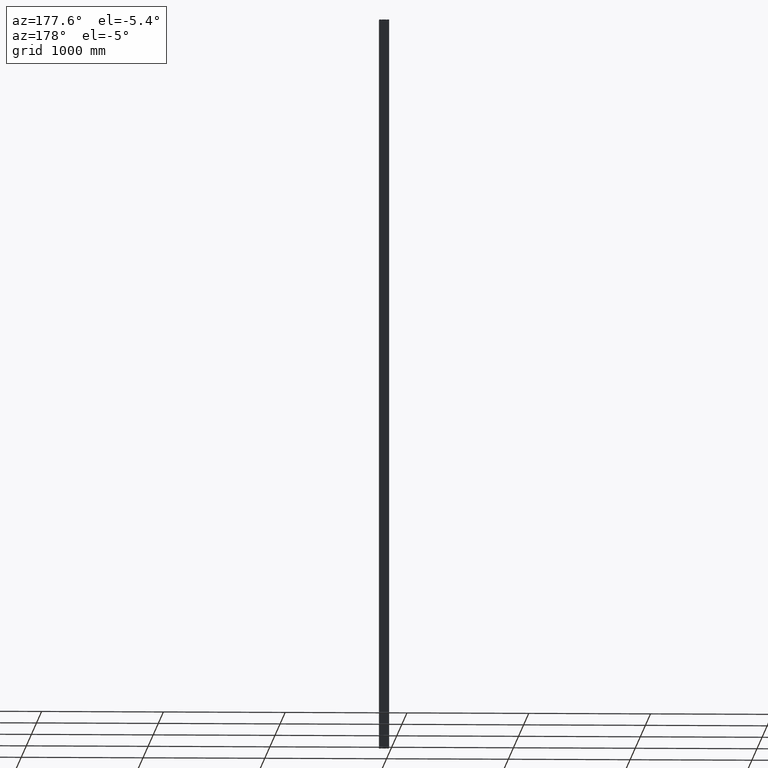
[diagram: clean part render]
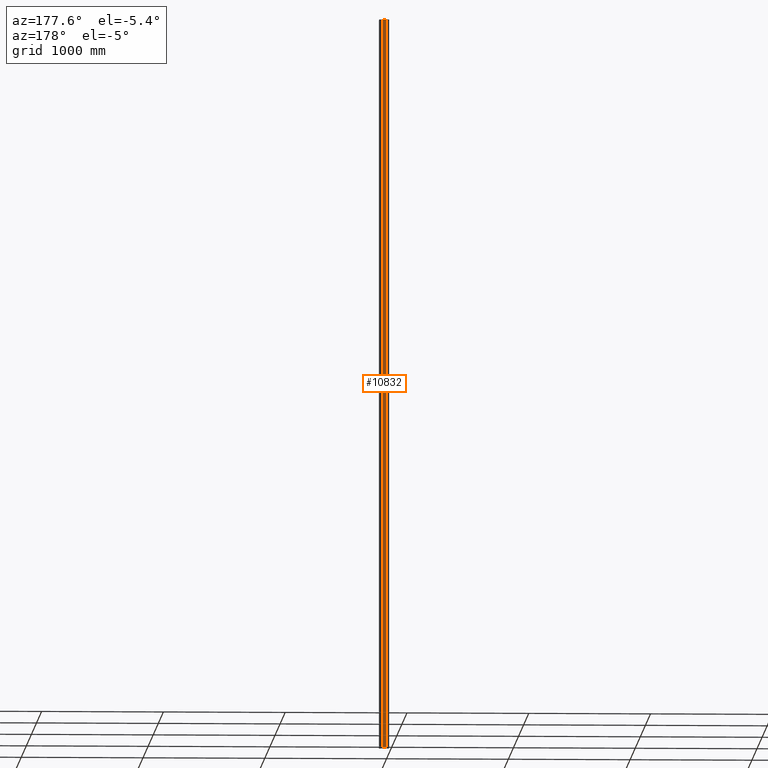
[diagram: same view with one face highlighted and labeled with its STEP entity id]
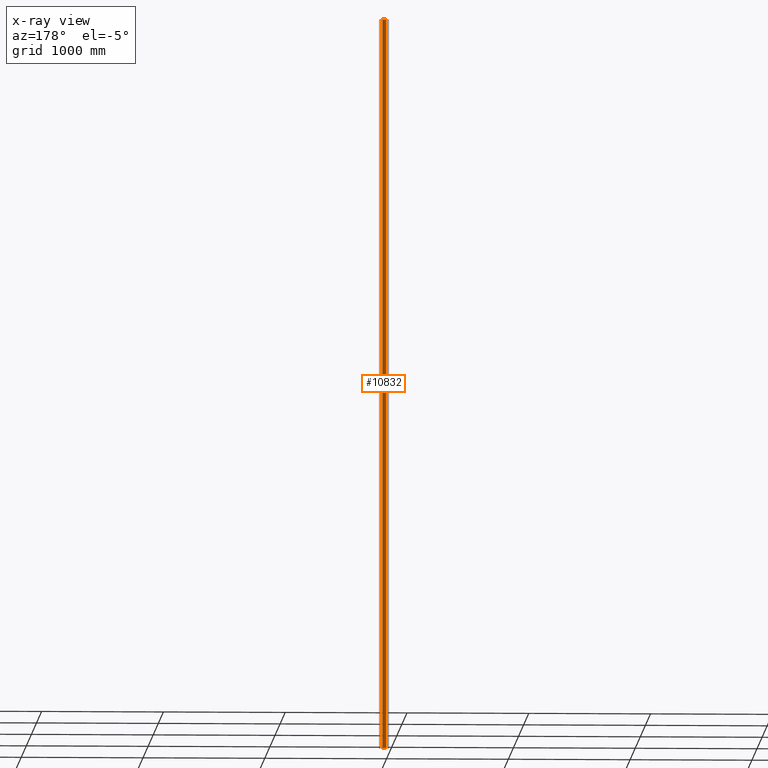
[diagram: x-ray of the same camera — body ghosted, the highlighted face saturated]
A machine part, auxiliary view. The second image highlights one B-rep face of the part: STEP entity #10832.
The next image is the same camera in x-ray: the body ghosted, the highlighted face saturated — about 0% of this face is hidden behind the body in this view.
In plain terms, the highlighted planar face has unit normal (0, 1, 0).
Its self-contained STEP definition (entity closure, byte-faithful):
#2953 = VERTEX_POINT ( 'NONE', #19736 ) ;
#2954 = VERTEX_POINT ( 'NONE', #19737 ) ;
#2955 = VERTEX_POINT ( 'NONE', #19738 ) ;
#2956 = VERTEX_POINT ( 'NONE', #19739 ) ;
#3484 = EDGE_CURVE ( 'NONE', #2956, #2954, #7810, .T. ) ;
#3485 = EDGE_CURVE ( 'NONE', #2955, #2953, #7812, .T. ) ;
#7810 = LINE ( 'NONE', #8377, #7811 ) ;
#7811 = VECTOR ( 'NONE', #8378, 1000.000000000000000 ) ;
#7812 = LINE ( 'NONE', #8379, #7813 ) ;
#7813 = VECTOR ( 'NONE', #8380, 1000.000000000000000 ) ;
#8377 = CARTESIAN_POINT ( 'NONE',  ( 4.000000000000000000, 20.00000000000000000, -6000.000000000000000 ) ) ;
#8378 = DIRECTION ( 'NONE',  ( -1.000000000000000000, -0.0000000000000000000, -0.0000000000000000000 ) ) ;
#8379 = CARTESIAN_POINT ( 'NONE',  ( -20.00000000000000000, 20.00000000000000400, 0.0000000000000000000 ) ) ;
#8380 = DIRECTION ( 'NONE',  ( -1.000000000000000000, -0.0000000000000000000, -0.0000000000000000000 ) ) ;
#10832 = ADVANCED_FACE ( 'NONE', ( #11145 ), #17864, .T. ) ;
#11145 = FACE_OUTER_BOUND ( 'NONE', #25985, .T. ) ;
#14444 = LINE ( 'NONE', #14989, #14445 ) ;
#14445 = VECTOR ( 'NONE', #14990, 1000.000000000000000 ) ;
#14452 = LINE ( 'NONE', #14997, #14453 ) ;
#14453 = VECTOR ( 'NONE', #14998, 1000.000000000000000 ) ;
#14989 = CARTESIAN_POINT ( 'NONE',  ( 36.00000000000000700, 20.00000000000000000, -3000.000000000000000 ) ) ;
#14990 = DIRECTION ( 'NONE',  ( -0.0000000000000000000, -0.0000000000000000000, -1.000000000000000000 ) ) ;
#14997 = CARTESIAN_POINT ( 'NONE',  ( 4.000000000000000000, 20.00000000000000000, -3000.000000000000000 ) ) ;
#14998 = DIRECTION ( 'NONE',  ( 0.0000000000000000000, 0.0000000000000000000, 1.000000000000000000 ) ) ;
#17009 = AXIS2_PLACEMENT_3D ( 'NONE', #17865, #17866, #17867 ) ;
#17864 = PLANE ( 'NONE',  #17009 ) ;
#17865 = CARTESIAN_POINT ( 'NONE',  ( 4.000000000000000000, 20.00000000000000000, -6000.000000000000000 ) ) ;
#17866 = DIRECTION ( 'NONE',  ( 0.0000000000000000000, 1.000000000000000000, 0.0000000000000000000 ) ) ;
#17867 = DIRECTION ( 'NONE',  ( 0.0000000000000000000, 0.0000000000000000000, 1.000000000000000000 ) ) ;
#18462 = EDGE_CURVE ( 'NONE', #2955, #2956, #14444, .T. ) ;
#18466 = EDGE_CURVE ( 'NONE', #2954, #2953, #14452, .T. ) ;
#19736 = CARTESIAN_POINT ( 'NONE',  ( 4.000000000000000000, 20.00000000000000400, 0.0000000000000000000 ) ) ;
#19737 = CARTESIAN_POINT ( 'NONE',  ( 4.000000000000000000, 20.00000000000000000, -6000.000000000000000 ) ) ;
#19738 = CARTESIAN_POINT ( 'NONE',  ( 36.00000000000000700, 20.00000000000000400, 0.0000000000000000000 ) ) ;
#19739 = CARTESIAN_POINT ( 'NONE',  ( 36.00000000000000700, 20.00000000000000000, -6000.000000000000000 ) ) ;
#25985 = EDGE_LOOP ( 'NONE', ( #27450, #27451, #27452, #27453 ) ) ;
#27450 = ORIENTED_EDGE ( 'NONE', *, *, #3484, .T. ) ;
#27451 = ORIENTED_EDGE ( 'NONE', *, *, #18466, .T. ) ;
#27452 = ORIENTED_EDGE ( 'NONE', *, *, #3485, .F. ) ;
#27453 = ORIENTED_EDGE ( 'NONE', *, *, #18462, .T. ) ;